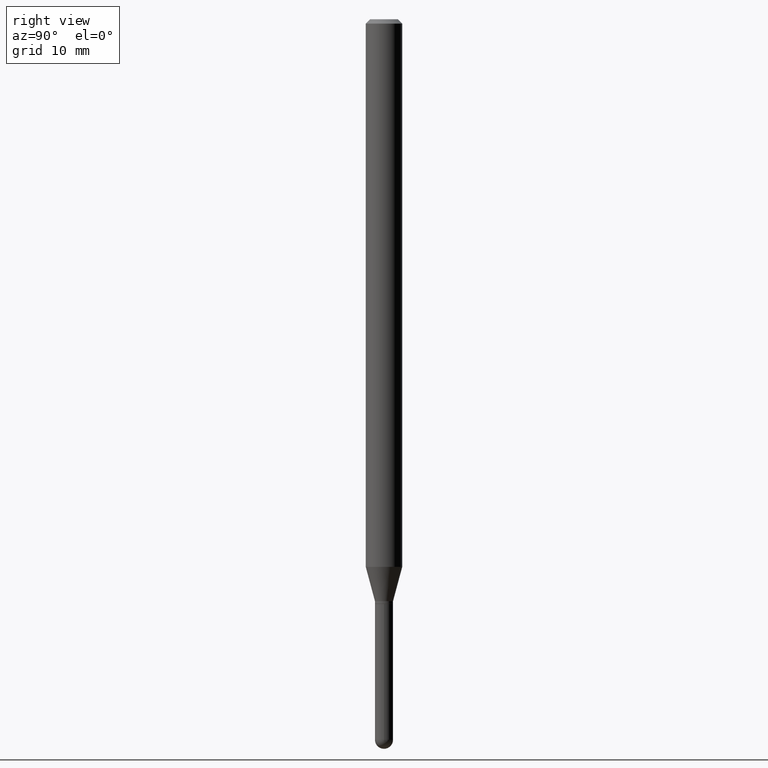
[diagram: clean part render]
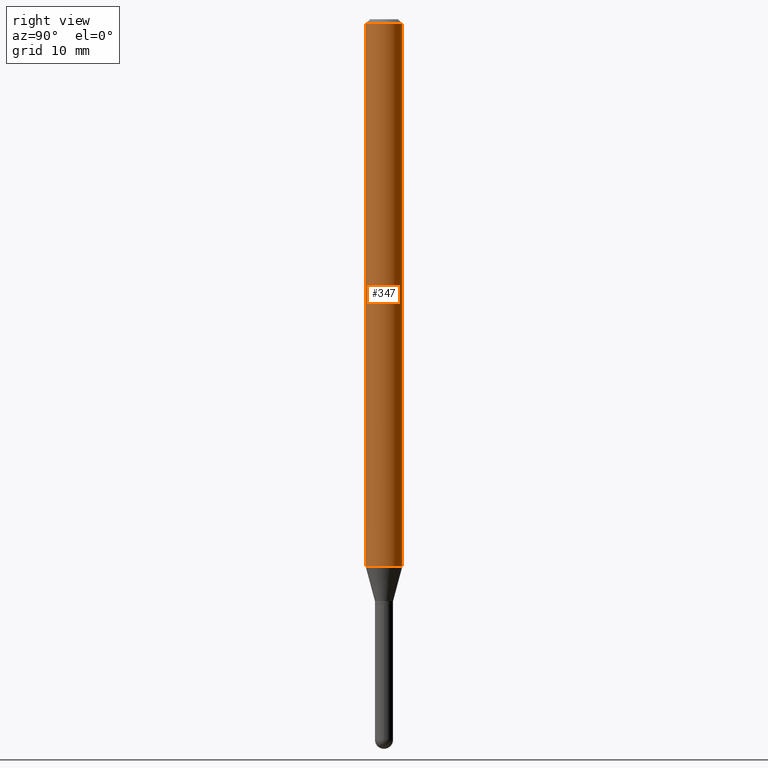
[diagram: same view with one face highlighted and labeled with its STEP entity id]
A machine part, right view. The second image highlights one B-rep face of the part: STEP entity #347.
In plain terms, the highlighted cylindrical surface (edge-blend (fillet) strip) has radius 1.5875 mm, axis along (-0, 0, 1).
Its self-contained STEP definition (entity closure, byte-faithful):
#6 = CARTESIAN_POINT ( 'NONE',  ( 4.440892098501086659E-16, 0.06249999999999995143, -0.01500000000000054588 ) ) ;
#26 = AXIS2_PLACEMENT_3D ( 'NONE', #478, #207, #358 ) ;
#29 = CARTESIAN_POINT ( 'NONE',  ( -4.364351673553912750E-16, -0.06250000000000005551, -0.01500000000000011047 ) ) ;
#52 = ORIENTED_EDGE ( 'NONE', *, *, #437, .F. ) ;
#55 = VERTEX_POINT ( 'NONE', #158 ) ;
#58 = DIRECTION ( 'NONE',  ( -2.445487727157184273E-29, 3.491454242934258452E-15, 1.000000000000000000 ) ) ;
#132 = CARTESIAN_POINT ( 'NONE',  ( 4.440892098501081729E-16, 0.06249999999999341499, -1.876440399561582151 ) ) ;
#135 = EDGE_LOOP ( 'NONE', ( #292, #304, #52, #169 ) ) ;
#136 = CARTESIAN_POINT ( 'NONE',  ( 3.668231590735856687E-31, -5.237181364401502236E-17, -0.01500000000000032904 ) ) ;
#137 = DIRECTION ( 'NONE',  ( -6.982962677686265922E-15, -1.000000000000000000, 3.483106191921935554E-15 ) ) ;
#158 = CARTESIAN_POINT ( 'NONE',  ( -4.364351673553459155E-16, -0.06250000000000656419, -1.876440399561581485 ) ) ;
#169 = ORIENTED_EDGE ( 'NONE', *, *, #182, .F. ) ;
#182 = EDGE_CURVE ( 'NONE', #55, #416, #186, .T. ) ;
#186 = LINE ( 'NONE', #470, #413 ) ;
#197 = CYLINDRICAL_SURFACE ( 'NONE', #26, 0.06250000000000000000 ) ;
#207 = DIRECTION ( 'NONE',  ( -2.445487727157184273E-29, 3.491454242934258452E-15, 1.000000000000000000 ) ) ;
#253 = DIRECTION ( 'NONE',  ( -2.445487727157183993E-29, 3.491454242934258847E-15, 1.000000000000000000 ) ) ;
#255 = VERTEX_POINT ( 'NONE', #6 ) ;
#259 = CIRCLE ( 'NONE', #404, 0.06250000000000000000 ) ;
#282 = VECTOR ( 'NONE', #253, 39.37007874015748143 ) ;
#292 = ORIENTED_EDGE ( 'NONE', *, *, #393, .T. ) ;
#304 = ORIENTED_EDGE ( 'NONE', *, *, #507, .T. ) ;
#311 = DIRECTION ( 'NONE',  ( -6.982962677686265922E-15, -1.000000000000000000, 4.370956789862821150E-15 ) ) ;
#315 = DIRECTION ( 'NONE',  ( -2.445487727157184273E-29, 3.491454242934258452E-15, 1.000000000000000000 ) ) ;
#336 = LINE ( 'NONE', #492, #282 ) ;
#347 = ADVANCED_FACE ( 'NONE', ( #361 ), #197, .T. ) ;
#358 = DIRECTION ( 'NONE',  ( -6.982962677686265922E-15, -1.000000000000000000, 3.491454242934258452E-15 ) ) ;
#359 = CIRCLE ( 'NONE', #421, 0.06250000000000000000 ) ;
#361 = FACE_OUTER_BOUND ( 'NONE', #135, .T. ) ;
#371 = CARTESIAN_POINT ( 'NONE',  ( 4.588811967869771303E-29, -6.551505794662540099E-15, -1.876440399561581707 ) ) ;
#393 = EDGE_CURVE ( 'NONE', #55, #505, #359, .T. ) ;
#404 = AXIS2_PLACEMENT_3D ( 'NONE', #136, #58, #137 ) ;
#413 = VECTOR ( 'NONE', #436, 39.37007874015748143 ) ;
#416 = VERTEX_POINT ( 'NONE', #29 ) ;
#421 = AXIS2_PLACEMENT_3D ( 'NONE', #371, #315, #311 ) ;
#436 = DIRECTION ( 'NONE',  ( -2.445487727157183993E-29, 3.491454242934258847E-15, 1.000000000000000000 ) ) ;
#437 = EDGE_CURVE ( 'NONE', #416, #255, #259, .T. ) ;
#470 = CARTESIAN_POINT ( 'NONE',  ( -4.364351673553916201E-16, -0.06250000000000000000, 2.182158901833911533E-16 ) ) ;
#478 = CARTESIAN_POINT ( 'NONE',  ( 0.000000000000000000, 0.000000000000000000, 0.000000000000000000 ) ) ;
#492 = CARTESIAN_POINT ( 'NONE',  ( 4.440892098500625669E-16, 0.06250000000000000000, -2.182158901833911533E-16 ) ) ;
#505 = VERTEX_POINT ( 'NONE', #132 ) ;
#507 = EDGE_CURVE ( 'NONE', #505, #255, #336, .T. ) ;